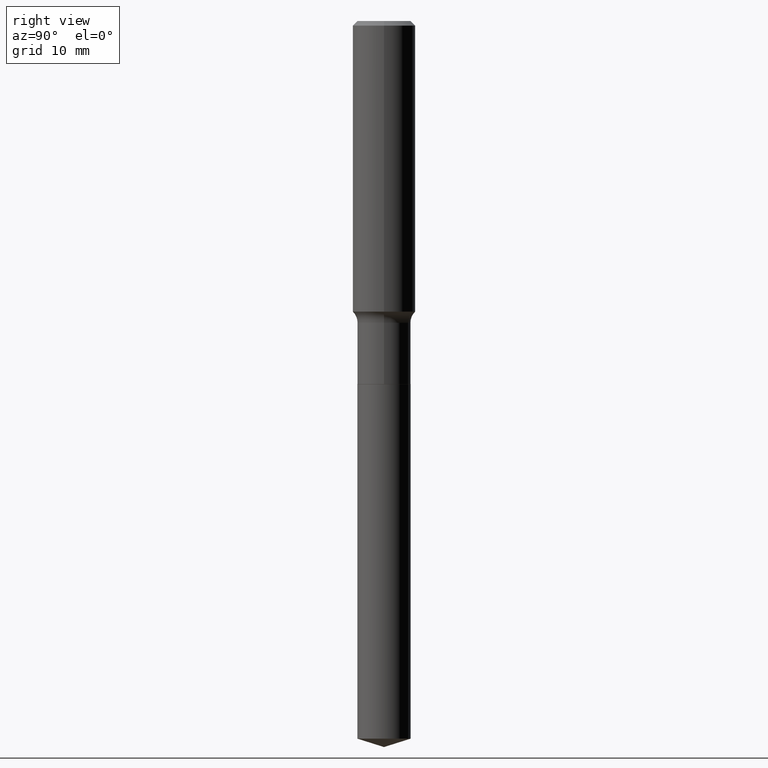
[diagram: clean part render]
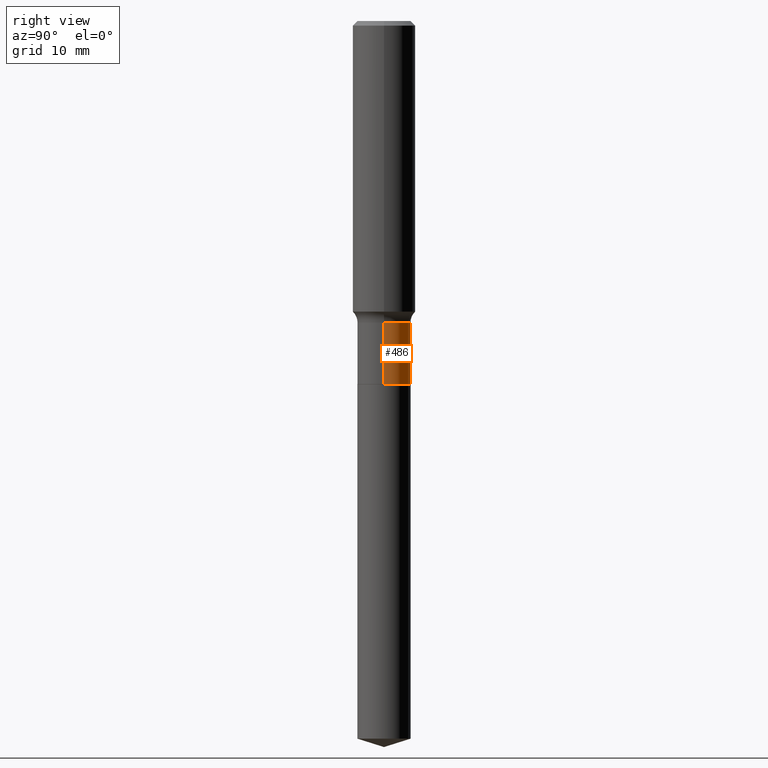
[diagram: same view with one face highlighted and labeled with its STEP entity id]
A machine part, right view. The second image highlights one B-rep face of the part: STEP entity #486.
In plain terms, the highlighted cylindrical surface (edge-blend (fillet) strip) has radius 3.3782 mm, axis along (-0, 0, 1).
Its self-contained STEP definition (entity closure, byte-faithful):
#7 = VECTOR ( 'NONE', #278, 39.37007874015748143 ) ;
#10 = EDGE_CURVE ( 'NONE', #94, #84, #50, .T. ) ;
#11 = CARTESIAN_POINT ( 'NONE',  ( 0.1329999999999999793, -9.287340361322734252E-16, 6.485315111808593988E-30 ) ) ;
#42 = CIRCLE ( 'NONE', #297, 0.1329999999999999793 ) ;
#50 = CIRCLE ( 'NONE', #243, 0.1329999999999999793 ) ;
#66 = DIRECTION ( 'NONE',  ( 1.000000000000000000, -6.982962677686267499E-15, 4.876176775795936353E-29 ) ) ;
#70 = DIRECTION ( 'NONE',  ( -2.445468806185136877E-29, 3.491481338843145188E-15, 1.000000000000000000 ) ) ;
#78 = CARTESIAN_POINT ( 'NONE',  ( -0.1329999999999999793, 9.450218385609331005E-16, -6.542183670039024169E-30 ) ) ;
#79 = EDGE_CURVE ( 'NONE', #179, #84, #224, .T. ) ;
#84 = VERTEX_POINT ( 'NONE', #310 ) ;
#93 = CARTESIAN_POINT ( 'NONE',  ( 0.1329999999999999793, -7.256694814651591602E-15, -1.812400000000000233 ) ) ;
#94 = VERTEX_POINT ( 'NONE', #303 ) ;
#127 = CARTESIAN_POINT ( 'NONE',  ( 3.685321490921001874E-29, -5.261662377636621593E-15, -1.507000000000000339 ) ) ;
#141 = EDGE_LOOP ( 'NONE', ( #445, #197, #181, #298 ) ) ;
#148 = CARTESIAN_POINT ( 'NONE',  ( 4.432167664329942418E-29, -6.327960778519318572E-15, -1.812400000000000233 ) ) ;
#170 = DIRECTION ( 'NONE',  ( -2.445468806185136597E-29, 3.491481338843145583E-15, 1.000000000000000000 ) ) ;
#172 = DIRECTION ( 'NONE',  ( 1.000000000000000000, -6.982962677686269077E-15, 0.000000000000000000 ) ) ;
#179 = VERTEX_POINT ( 'NONE', #356 ) ;
#180 = CYLINDRICAL_SURFACE ( 'NONE', #320, 0.1329999999999999793 ) ;
#181 = ORIENTED_EDGE ( 'NONE', *, *, #10, .F. ) ;
#197 = ORIENTED_EDGE ( 'NONE', *, *, #79, .T. ) ;
#208 = DIRECTION ( 'NONE',  ( 1.000000000000000000, -6.982962677686269077E-15, 0.000000000000000000 ) ) ;
#224 = LINE ( 'NONE', #78, #325 ) ;
#243 = AXIS2_PLACEMENT_3D ( 'NONE', #127, #391, #172 ) ;
#249 = DIRECTION ( 'NONE',  ( -2.445468806185136597E-29, 3.491481338843145583E-15, 1.000000000000000000 ) ) ;
#263 = CARTESIAN_POINT ( 'NONE',  ( 0.000000000000000000, 0.000000000000000000, 0.000000000000000000 ) ) ;
#278 = DIRECTION ( 'NONE',  ( -2.445468806185136877E-29, 3.491481338843145188E-15, 1.000000000000000000 ) ) ;
#297 = AXIS2_PLACEMENT_3D ( 'NONE', #148, #249, #208 ) ;
#298 = ORIENTED_EDGE ( 'NONE', *, *, #345, .F. ) ;
#303 = CARTESIAN_POINT ( 'NONE',  ( 0.1329999999999999793, -6.190396413768894624E-15, -1.507000000000000339 ) ) ;
#308 = VERTEX_POINT ( 'NONE', #93 ) ;
#310 = CARTESIAN_POINT ( 'NONE',  ( -0.1329999999999999793, -4.849789739517036785E-15, -1.507000000000000339 ) ) ;
#320 = AXIS2_PLACEMENT_3D ( 'NONE', #263, #170, #66 ) ;
#325 = VECTOR ( 'NONE', #70, 39.37007874015748143 ) ;
#345 = EDGE_CURVE ( 'NONE', #308, #94, #431, .T. ) ;
#356 = CARTESIAN_POINT ( 'NONE',  ( -0.1329999999999999793, -4.849789739517036785E-15, -1.812400000000000233 ) ) ;
#357 = FACE_OUTER_BOUND ( 'NONE', #141, .T. ) ;
#391 = DIRECTION ( 'NONE',  ( -2.445468806185136597E-29, 3.491481338843145583E-15, 1.000000000000000000 ) ) ;
#431 = LINE ( 'NONE', #11, #7 ) ;
#445 = ORIENTED_EDGE ( 'NONE', *, *, #465, .T. ) ;
#465 = EDGE_CURVE ( 'NONE', #308, #179, #42, .T. ) ;
#486 = ADVANCED_FACE ( 'NONE', ( #357 ), #180, .T. ) ;